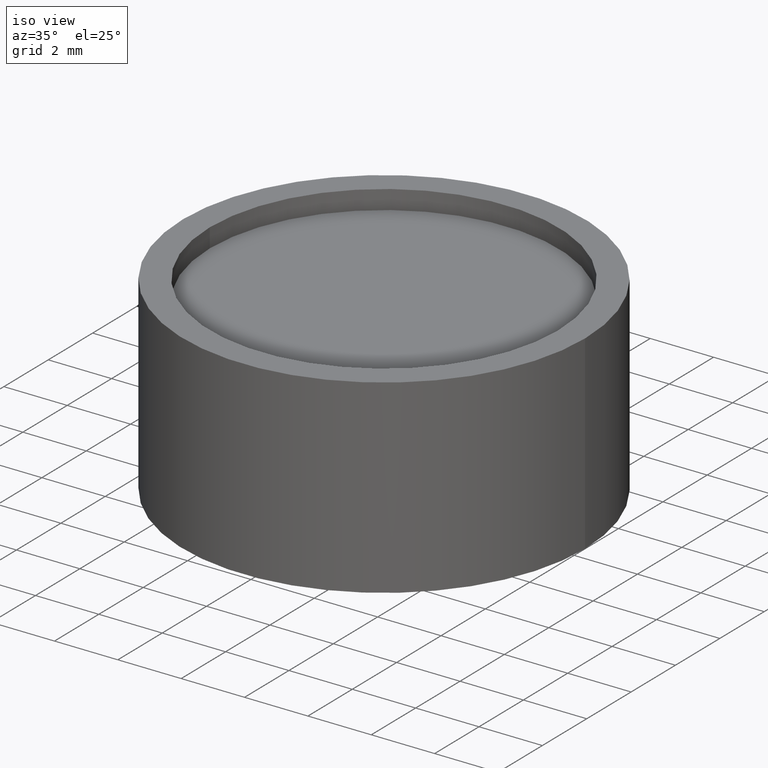
[diagram: clean part render]
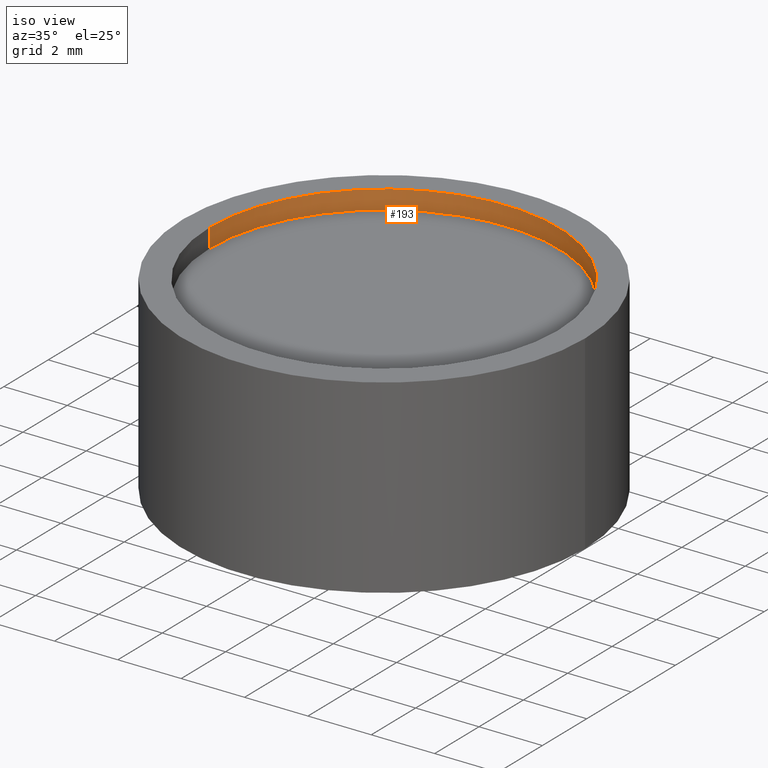
[diagram: same view with one face highlighted and labeled with its STEP entity id]
A machine part, iso view. The second image highlights one B-rep face of the part: STEP entity #193.
In plain terms, the highlighted cylindrical surface (partial cylindrical patch) has radius 5.5 mm, axis along (-0, -0, 1).
Its self-contained STEP definition (entity closure, byte-faithful):
#3 = DIRECTION ( 'NONE',  ( -0.000000000000000000, -0.000000000000000000, 1.000000000000000000 ) ) ;
#8 = CARTESIAN_POINT ( 'NONE',  ( 5.500000000000000000, 0.000000000000000000, 5.400000000000000355 ) ) ;
#11 = AXIS2_PLACEMENT_3D ( 'NONE', #251, #446, #330 ) ;
#13 = EDGE_CURVE ( 'NONE', #29, #464, #210, .T. ) ;
#21 = EDGE_CURVE ( 'NONE', #464, #34, #184, .T. ) ;
#29 = VERTEX_POINT ( 'NONE', #8 ) ;
#34 = VERTEX_POINT ( 'NONE', #288 ) ;
#72 = CARTESIAN_POINT ( 'NONE',  ( 5.500000000000000000, 0.000000000000000000, 6.000000000000000000 ) ) ;
#136 = CARTESIAN_POINT ( 'NONE',  ( -5.500000000000000000, 6.735557395310442023E-16, 5.400000000000000355 ) ) ;
#139 = AXIS2_PLACEMENT_3D ( 'NONE', #385, #3, #273 ) ;
#146 = DIRECTION ( 'NONE',  ( -0.000000000000000000, -0.000000000000000000, 1.000000000000000000 ) ) ;
#159 = CYLINDRICAL_SURFACE ( 'NONE', #139, 5.500000000000000000 ) ;
#166 = EDGE_CURVE ( 'NONE', #29, #374, #319, .T. ) ;
#184 = LINE ( 'NONE', #352, #197 ) ;
#193 = ADVANCED_FACE ( 'NONE', ( #252 ), #159, .F. ) ;
#195 = ORIENTED_EDGE ( 'NONE', *, *, #220, .T. ) ;
#197 = VECTOR ( 'NONE', #146, 1000.000000000000000 ) ;
#201 = EDGE_LOOP ( 'NONE', ( #234, #380, #431, #195 ) ) ;
#210 = CIRCLE ( 'NONE', #489, 5.500000000000000000 ) ;
#220 = EDGE_CURVE ( 'NONE', #374, #34, #470, .T. ) ;
#234 = ORIENTED_EDGE ( 'NONE', *, *, #21, .F. ) ;
#241 = DIRECTION ( 'NONE',  ( -0.000000000000000000, -0.000000000000000000, 1.000000000000000000 ) ) ;
#251 = CARTESIAN_POINT ( 'NONE',  ( 0.000000000000000000, 0.000000000000000000, 6.000000000000000000 ) ) ;
#252 = FACE_OUTER_BOUND ( 'NONE', #201, .T. ) ;
#273 = DIRECTION ( 'NONE',  ( 1.000000000000000000, 0.000000000000000000, 0.000000000000000000 ) ) ;
#288 = CARTESIAN_POINT ( 'NONE',  ( -5.500000000000000000, 6.735557395310442023E-16, 6.000000000000000000 ) ) ;
#319 = LINE ( 'NONE', #476, #494 ) ;
#330 = DIRECTION ( 'NONE',  ( 1.000000000000000000, 0.000000000000000000, 0.000000000000000000 ) ) ;
#352 = CARTESIAN_POINT ( 'NONE',  ( -5.500000000000000000, 6.735557395310442023E-16, 5.400000000000000355 ) ) ;
#374 = VERTEX_POINT ( 'NONE', #72 ) ;
#380 = ORIENTED_EDGE ( 'NONE', *, *, #13, .F. ) ;
#385 = CARTESIAN_POINT ( 'NONE',  ( 0.000000000000000000, 0.000000000000000000, 5.400000000000000355 ) ) ;
#387 = DIRECTION ( 'NONE',  ( 1.000000000000000000, 0.000000000000000000, 0.000000000000000000 ) ) ;
#431 = ORIENTED_EDGE ( 'NONE', *, *, #166, .T. ) ;
#446 = DIRECTION ( 'NONE',  ( 0.000000000000000000, 0.000000000000000000, 1.000000000000000000 ) ) ;
#454 = DIRECTION ( 'NONE',  ( 0.000000000000000000, 0.000000000000000000, 1.000000000000000000 ) ) ;
#464 = VERTEX_POINT ( 'NONE', #136 ) ;
#470 = CIRCLE ( 'NONE', #11, 5.500000000000000000 ) ;
#476 = CARTESIAN_POINT ( 'NONE',  ( 5.500000000000000000, 0.000000000000000000, 5.400000000000000355 ) ) ;
#489 = AXIS2_PLACEMENT_3D ( 'NONE', #491, #454, #387 ) ;
#491 = CARTESIAN_POINT ( 'NONE',  ( 0.000000000000000000, 0.000000000000000000, 5.400000000000000355 ) ) ;
#494 = VECTOR ( 'NONE', #241, 1000.000000000000000 ) ;